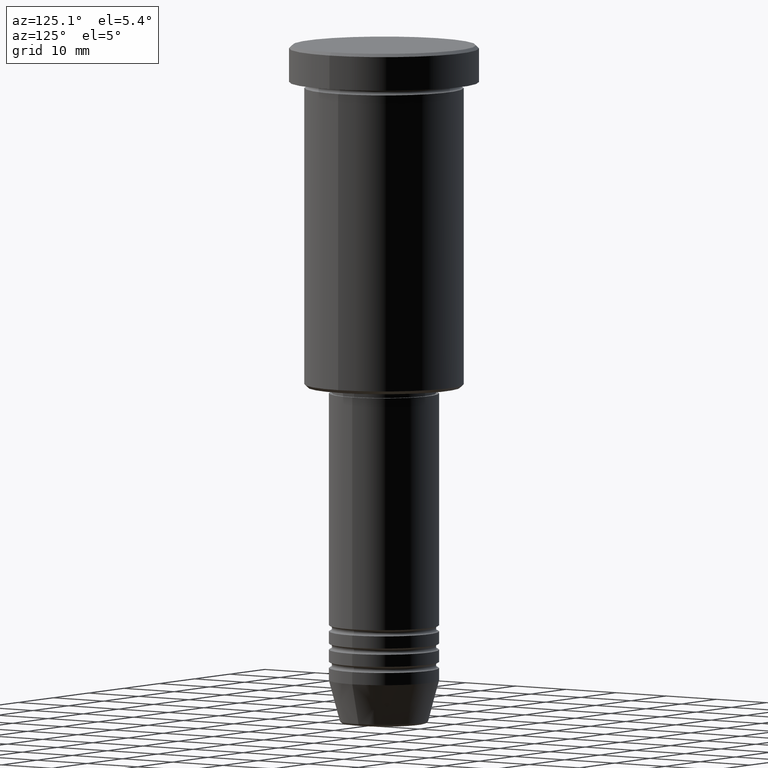
[diagram: clean part render]
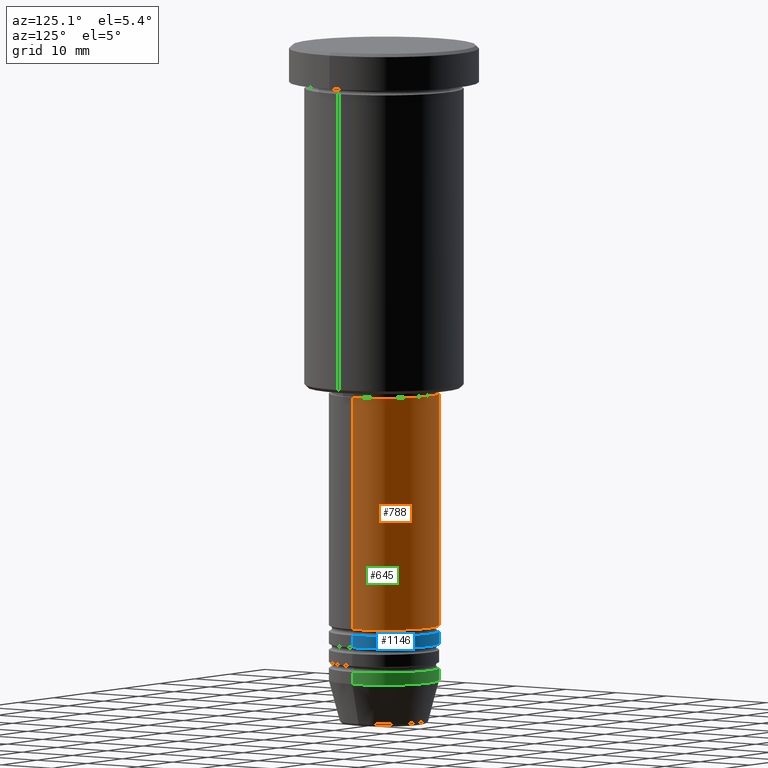
[diagram: same view with three faces highlighted in distinct colors, each labeled with its STEP entity id]
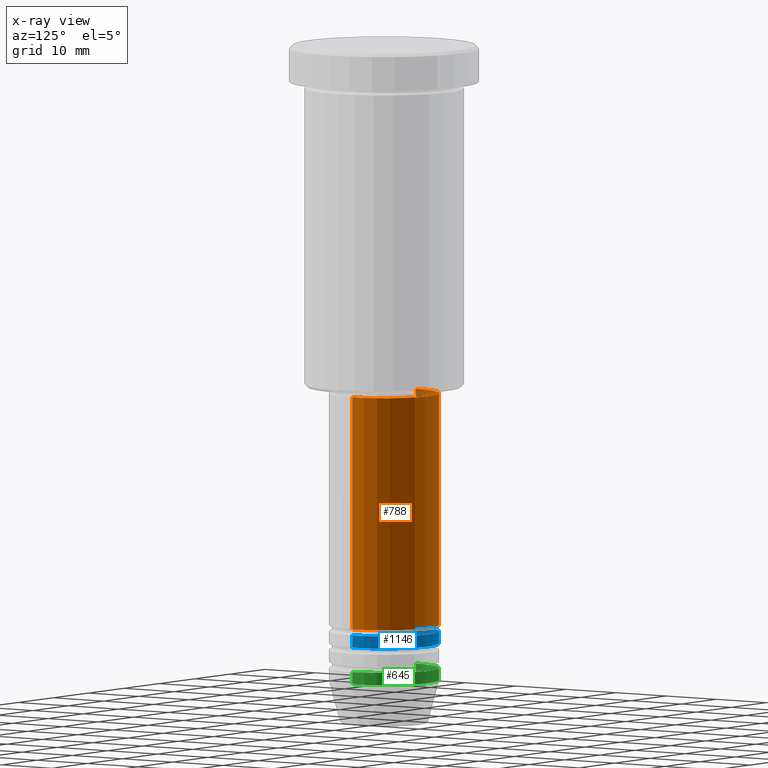
[diagram: x-ray of the same camera — body ghosted, the three highlighted faces saturated]
A machine part, auxiliary view with three faces highlighted in distinct colors.
The next image is the same camera in x-ray (body ghosted, the three faces saturated) — at least one of them is partly hidden behind the body in this view.
Their STEP definitions:

[orange] entity #788 — the highlighted cylindrical surface (partial cylindrical patch) has radius 9 mm, axis along (-0, -0, 1).
#49 = CARTESIAN_POINT ( 'NONE',  ( 0.000000000000000000, 0.000000000000000000, -57.00000000000000000 ) ) ;
#88 = DIRECTION ( 'NONE',  ( -0.000000000000000000, -0.000000000000000000, 1.000000000000000000 ) ) ;
#110 = VERTEX_POINT ( 'NONE', #988 ) ;
#131 = ORIENTED_EDGE ( 'NONE', *, *, #212, .F. ) ;
#133 = ORIENTED_EDGE ( 'NONE', *, *, #549, .F. ) ;
#149 = CARTESIAN_POINT ( 'NONE',  ( -9.000000000000000000, 1.102182119232617714E-15, -94.99999999999997158 ) ) ;
#160 = AXIS2_PLACEMENT_3D ( 'NONE', #287, #88, #177 ) ;
#177 = DIRECTION ( 'NONE',  ( 1.000000000000000000, 0.000000000000000000, 0.000000000000000000 ) ) ;
#182 = DIRECTION ( 'NONE',  ( 1.000000000000000000, 0.000000000000000000, 0.000000000000000000 ) ) ;
#197 = CYLINDRICAL_SURFACE ( 'NONE', #160, 9.000000000000000000 ) ;
#212 = EDGE_CURVE ( 'NONE', #1069, #1149, #1131, .T. ) ;
#227 = VERTEX_POINT ( 'NONE', #149 ) ;
#257 = CARTESIAN_POINT ( 'NONE',  ( 9.000000000000000000, 0.000000000000000000, 0.000000000000000000 ) ) ;
#286 = DIRECTION ( 'NONE',  ( -0.000000000000000000, -0.000000000000000000, 1.000000000000000000 ) ) ;
#287 = CARTESIAN_POINT ( 'NONE',  ( 0.000000000000000000, 0.000000000000000000, 0.000000000000000000 ) ) ;
#414 = DIRECTION ( 'NONE',  ( -0.000000000000000000, -0.000000000000000000, 1.000000000000000000 ) ) ;
#422 = LINE ( 'NONE', #257, #458 ) ;
#440 = CARTESIAN_POINT ( 'NONE',  ( 0.000000000000000000, 0.000000000000000000, -94.99999999999997158 ) ) ;
#458 = VECTOR ( 'NONE', #613, 1000.000000000000000 ) ;
#505 = AXIS2_PLACEMENT_3D ( 'NONE', #440, #286, #182 ) ;
#526 = EDGE_LOOP ( 'NONE', ( #921, #969, #131, #133 ) ) ;
#534 = CARTESIAN_POINT ( 'NONE',  ( -9.000000000000000000, 1.102182119232617714E-15, -57.00000000000000000 ) ) ;
#549 = EDGE_CURVE ( 'NONE', #110, #1069, #422, .T. ) ;
#613 = DIRECTION ( 'NONE',  ( -0.000000000000000000, -0.000000000000000000, 1.000000000000000000 ) ) ;
#626 = DIRECTION ( 'NONE',  ( 1.000000000000000000, 0.000000000000000000, 0.000000000000000000 ) ) ;
#721 = FACE_OUTER_BOUND ( 'NONE', #526, .T. ) ;
#736 = VECTOR ( 'NONE', #865, 1000.000000000000000 ) ;
#765 = LINE ( 'NONE', #1021, #736 ) ;
#788 = ADVANCED_FACE ( 'NONE', ( #721 ), #197, .T. ) ;
#840 = EDGE_CURVE ( 'NONE', #227, #1149, #765, .T. ) ;
#865 = DIRECTION ( 'NONE',  ( -0.000000000000000000, -0.000000000000000000, 1.000000000000000000 ) ) ;
#921 = ORIENTED_EDGE ( 'NONE', *, *, #1142, .T. ) ;
#955 = AXIS2_PLACEMENT_3D ( 'NONE', #49, #414, #626 ) ;
#969 = ORIENTED_EDGE ( 'NONE', *, *, #840, .T. ) ;
#988 = CARTESIAN_POINT ( 'NONE',  ( 9.000000000000000000, 0.000000000000000000, -94.99999999999997158 ) ) ;
#1021 = CARTESIAN_POINT ( 'NONE',  ( -9.000000000000000000, 1.102182119232617714E-15, 0.000000000000000000 ) ) ;
#1069 = VERTEX_POINT ( 'NONE', #1140 ) ;
#1131 = CIRCLE ( 'NONE', #955, 9.000000000000000000 ) ;
#1135 = CIRCLE ( 'NONE', #505, 9.000000000000000000 ) ;
#1140 = CARTESIAN_POINT ( 'NONE',  ( 9.000000000000000000, 0.000000000000000000, -57.00000000000000000 ) ) ;
#1142 = EDGE_CURVE ( 'NONE', #110, #227, #1135, .T. ) ;
#1149 = VERTEX_POINT ( 'NONE', #534 ) ;

[blue] entity #1146 — the highlighted cylindrical surface (partial cylindrical patch) has radius 9 mm, axis along (-0, -0, 1).
#13 = CARTESIAN_POINT ( 'NONE',  ( 0.000000000000000000, 0.000000000000000000, -95.99999999999998579 ) ) ;
#46 = CIRCLE ( 'NONE', #979, 9.000000000000000000 ) ;
#62 = CARTESIAN_POINT ( 'NONE',  ( 9.000000000000000000, 0.000000000000000000, 0.000000000000000000 ) ) ;
#63 = VECTOR ( 'NONE', #236, 1000.000000000000000 ) ;
#69 = LINE ( 'NONE', #62, #63 ) ;
#77 = DIRECTION ( 'NONE',  ( -0.000000000000000000, -0.000000000000000000, 1.000000000000000000 ) ) ;
#180 = CARTESIAN_POINT ( 'NONE',  ( 0.000000000000000000, 0.000000000000000000, -97.99999999999997158 ) ) ;
#218 = DIRECTION ( 'NONE',  ( -0.000000000000000000, -0.000000000000000000, 1.000000000000000000 ) ) ;
#236 = DIRECTION ( 'NONE',  ( -0.000000000000000000, -0.000000000000000000, 1.000000000000000000 ) ) ;
#273 = EDGE_CURVE ( 'NONE', #669, #275, #407, .T. ) ;
#275 = VERTEX_POINT ( 'NONE', #294 ) ;
#294 = CARTESIAN_POINT ( 'NONE',  ( -9.000000000000000000, 1.102182119232617714E-15, -97.99999999999997158 ) ) ;
#366 = CARTESIAN_POINT ( 'NONE',  ( 0.000000000000000000, 0.000000000000000000, 0.000000000000000000 ) ) ;
#378 = ORIENTED_EDGE ( 'NONE', *, *, #273, .T. ) ;
#407 = CIRCLE ( 'NONE', #1075, 9.000000000000000000 ) ;
#451 = CARTESIAN_POINT ( 'NONE',  ( -9.000000000000000000, 1.102182119232617714E-15, -95.99999999999998579 ) ) ;
#466 = DIRECTION ( 'NONE',  ( 1.000000000000000000, 0.000000000000000000, 0.000000000000000000 ) ) ;
#542 = DIRECTION ( 'NONE',  ( 1.000000000000000000, 0.000000000000000000, 0.000000000000000000 ) ) ;
#580 = LINE ( 'NONE', #667, #999 ) ;
#627 = EDGE_CURVE ( 'NONE', #669, #698, #69, .T. ) ;
#631 = CARTESIAN_POINT ( 'NONE',  ( 9.000000000000000000, 0.000000000000000000, -95.99999999999998579 ) ) ;
#660 = ORIENTED_EDGE ( 'NONE', *, *, #732, .F. ) ;
#667 = CARTESIAN_POINT ( 'NONE',  ( -9.000000000000000000, 1.102182119232617714E-15, 0.000000000000000000 ) ) ;
#669 = VERTEX_POINT ( 'NONE', #873 ) ;
#698 = VERTEX_POINT ( 'NONE', #631 ) ;
#731 = CYLINDRICAL_SURFACE ( 'NONE', #759, 9.000000000000000000 ) ;
#732 = EDGE_CURVE ( 'NONE', #698, #1171, #46, .T. ) ;
#759 = AXIS2_PLACEMENT_3D ( 'NONE', #366, #915, #542 ) ;
#823 = DIRECTION ( 'NONE',  ( -0.000000000000000000, -0.000000000000000000, 1.000000000000000000 ) ) ;
#873 = CARTESIAN_POINT ( 'NONE',  ( 9.000000000000000000, 0.000000000000000000, -97.99999999999997158 ) ) ;
#912 = DIRECTION ( 'NONE',  ( 1.000000000000000000, 0.000000000000000000, 0.000000000000000000 ) ) ;
#915 = DIRECTION ( 'NONE',  ( -0.000000000000000000, -0.000000000000000000, 1.000000000000000000 ) ) ;
#934 = EDGE_CURVE ( 'NONE', #275, #1171, #580, .T. ) ;
#979 = AXIS2_PLACEMENT_3D ( 'NONE', #13, #77, #912 ) ;
#990 = FACE_OUTER_BOUND ( 'NONE', #1081, .T. ) ;
#999 = VECTOR ( 'NONE', #218, 1000.000000000000000 ) ;
#1075 = AXIS2_PLACEMENT_3D ( 'NONE', #180, #823, #466 ) ;
#1081 = EDGE_LOOP ( 'NONE', ( #378, #1157, #660, #1097 ) ) ;
#1097 = ORIENTED_EDGE ( 'NONE', *, *, #627, .F. ) ;
#1146 = ADVANCED_FACE ( 'NONE', ( #990 ), #731, .T. ) ;
#1157 = ORIENTED_EDGE ( 'NONE', *, *, #934, .T. ) ;
#1171 = VERTEX_POINT ( 'NONE', #451 ) ;

[green] entity #645 — the highlighted cylindrical surface (partial cylindrical patch) has radius 9 mm, axis along (-0, -0, 1).
#54 = CARTESIAN_POINT ( 'NONE',  ( 9.000000000000000000, 0.000000000000000000, 0.000000000000000000 ) ) ;
#137 = EDGE_CURVE ( 'NONE', #528, #390, #1058, .T. ) ;
#152 = DIRECTION ( 'NONE',  ( 1.000000000000000000, 0.000000000000000000, 0.000000000000000000 ) ) ;
#157 = DIRECTION ( 'NONE',  ( -0.000000000000000000, -0.000000000000000000, 1.000000000000000000 ) ) ;
#166 = VERTEX_POINT ( 'NONE', #316 ) ;
#213 = CARTESIAN_POINT ( 'NONE',  ( -9.000000000000000000, 1.102182119232617714E-15, -104.0000000000000142 ) ) ;
#279 = AXIS2_PLACEMENT_3D ( 'NONE', #953, #157, #152 ) ;
#290 = ORIENTED_EDGE ( 'NONE', *, *, #1125, .T. ) ;
#293 = CARTESIAN_POINT ( 'NONE',  ( 0.000000000000000000, 0.000000000000000000, -102.0000000000000142 ) ) ;
#314 = DIRECTION ( 'NONE',  ( 1.000000000000000000, 0.000000000000000000, 0.000000000000000000 ) ) ;
#316 = CARTESIAN_POINT ( 'NONE',  ( -9.000000000000000000, 1.102182119232617714E-15, -102.0000000000000142 ) ) ;
#349 = FACE_OUTER_BOUND ( 'NONE', #913, .T. ) ;
#357 = VECTOR ( 'NONE', #681, 1000.000000000000000 ) ;
#362 = LINE ( 'NONE', #911, #943 ) ;
#390 = VERTEX_POINT ( 'NONE', #668 ) ;
#428 = AXIS2_PLACEMENT_3D ( 'NONE', #293, #1033, #314 ) ;
#448 = ORIENTED_EDGE ( 'NONE', *, *, #1018, .T. ) ;
#463 = CIRCLE ( 'NONE', #279, 9.000000000000000000 ) ;
#484 = CIRCLE ( 'NONE', #428, 9.000000000000000000 ) ;
#528 = VERTEX_POINT ( 'NONE', #529 ) ;
#529 = CARTESIAN_POINT ( 'NONE',  ( 9.000000000000000000, 0.000000000000000000, -104.0000000000000142 ) ) ;
#550 = ORIENTED_EDGE ( 'NONE', *, *, #824, .F. ) ;
#562 = ORIENTED_EDGE ( 'NONE', *, *, #137, .F. ) ;
#589 = DIRECTION ( 'NONE',  ( 1.000000000000000000, 0.000000000000000000, 0.000000000000000000 ) ) ;
#595 = AXIS2_PLACEMENT_3D ( 'NONE', #954, #1049, #589 ) ;
#624 = DIRECTION ( 'NONE',  ( -0.000000000000000000, -0.000000000000000000, 1.000000000000000000 ) ) ;
#645 = ADVANCED_FACE ( 'NONE', ( #349 ), #803, .T. ) ;
#668 = CARTESIAN_POINT ( 'NONE',  ( 9.000000000000000000, 0.000000000000000000, -102.0000000000000142 ) ) ;
#681 = DIRECTION ( 'NONE',  ( -0.000000000000000000, -0.000000000000000000, 1.000000000000000000 ) ) ;
#803 = CYLINDRICAL_SURFACE ( 'NONE', #595, 9.000000000000000000 ) ;
#824 = EDGE_CURVE ( 'NONE', #390, #166, #484, .T. ) ;
#910 = VERTEX_POINT ( 'NONE', #213 ) ;
#911 = CARTESIAN_POINT ( 'NONE',  ( -9.000000000000000000, 1.102182119232617714E-15, 0.000000000000000000 ) ) ;
#913 = EDGE_LOOP ( 'NONE', ( #448, #290, #550, #562 ) ) ;
#943 = VECTOR ( 'NONE', #624, 1000.000000000000000 ) ;
#953 = CARTESIAN_POINT ( 'NONE',  ( 0.000000000000000000, 0.000000000000000000, -104.0000000000000142 ) ) ;
#954 = CARTESIAN_POINT ( 'NONE',  ( 0.000000000000000000, 0.000000000000000000, 0.000000000000000000 ) ) ;
#1018 = EDGE_CURVE ( 'NONE', #528, #910, #463, .T. ) ;
#1033 = DIRECTION ( 'NONE',  ( -0.000000000000000000, -0.000000000000000000, 1.000000000000000000 ) ) ;
#1049 = DIRECTION ( 'NONE',  ( -0.000000000000000000, -0.000000000000000000, 1.000000000000000000 ) ) ;
#1058 = LINE ( 'NONE', #54, #357 ) ;
#1125 = EDGE_CURVE ( 'NONE', #910, #166, #362, .T. ) ;